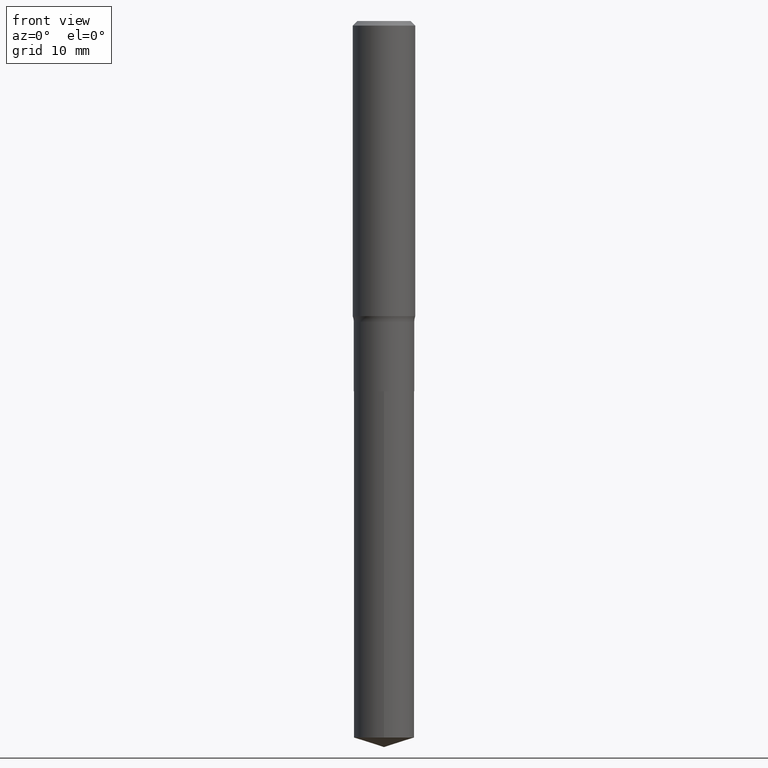
[diagram: clean part render]
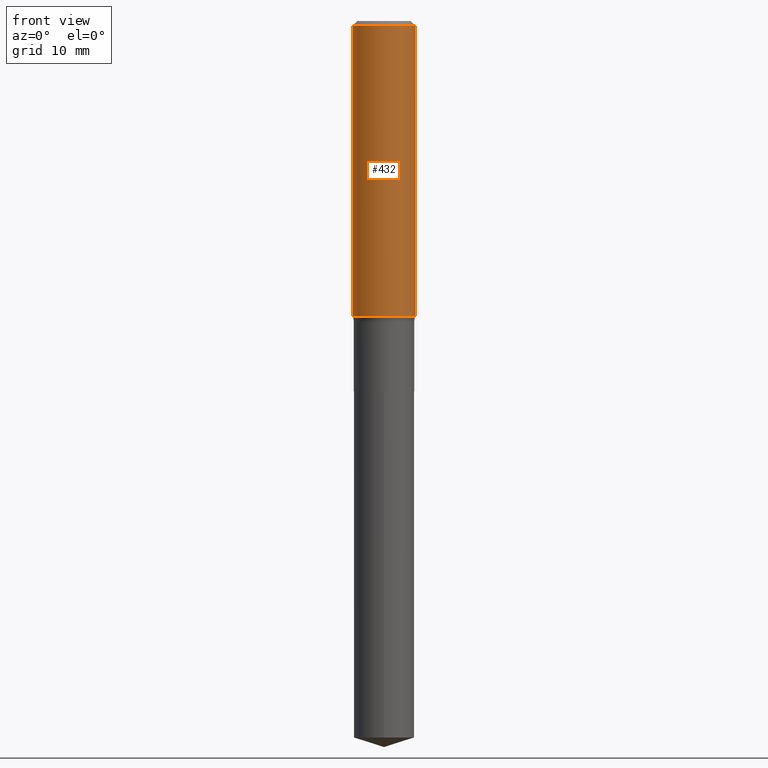
[diagram: same view with one face highlighted and labeled with its STEP entity id]
A machine part, front view. The second image highlights one B-rep face of the part: STEP entity #432.
In plain terms, the highlighted cylindrical surface (edge-blend (fillet) strip) has radius 3.9688 mm, axis along (-0, 0, 1).
Its self-contained STEP definition (entity closure, byte-faithful):
#8 = ORIENTED_EDGE ( 'NONE', *, *, #55, .F. ) ;
#15 = CARTESIAN_POINT ( 'NONE',  ( -0.1562500000000000000, -1.502984913880617145E-15, -0.02343750000000013878 ) ) ;
#55 = EDGE_CURVE ( 'NONE', #339, #415, #392, .T. ) ;
#57 = DIRECTION ( 'NONE',  ( 1.000000000000000000, -6.982962677686266711E-15, 4.876176775795935232E-29 ) ) ;
#64 = DIRECTION ( 'NONE',  ( -2.445468806185136597E-29, 3.491481338843145583E-15, 1.000000000000000000 ) ) ;
#86 = CARTESIAN_POINT ( 'NONE',  ( -0.1562500000000000833, 1.110223024625157132E-15, -7.685836078523293962E-30 ) ) ;
#89 = EDGE_CURVE ( 'NONE', #153, #161, #256, .T. ) ;
#95 = CARTESIAN_POINT ( 'NONE',  ( 0.1562500000000000000, -1.172919512267615999E-15, -0.02343750000000013878 ) ) ;
#117 = DIRECTION ( 'NONE',  ( 1.000000000000000000, -6.982962677686266711E-15, 0.000000000000000000 ) ) ;
#132 = EDGE_CURVE ( 'NONE', #153, #339, #310, .T. ) ;
#144 = EDGE_LOOP ( 'NONE', ( #308, #265, #158, #8 ) ) ;
#147 = AXIS2_PLACEMENT_3D ( 'NONE', #191, #329, #117 ) ;
#153 = VERTEX_POINT ( 'NONE', #272 ) ;
#158 = ORIENTED_EDGE ( 'NONE', *, *, #330, .T. ) ;
#161 = VERTEX_POINT ( 'NONE', #266 ) ;
#163 = AXIS2_PLACEMENT_3D ( 'NONE', #253, #64, #57 ) ;
#164 = DIRECTION ( 'NONE',  ( -2.445468806185136597E-29, 3.491481338843145583E-15, 1.000000000000000000 ) ) ;
#191 = CARTESIAN_POINT ( 'NONE',  ( 5.731567514496448055E-31, -8.183159387913671455E-17, -0.02343750000000013878 ) ) ;
#208 = CARTESIAN_POINT ( 'NONE',  ( 3.603318810622414011E-29, -5.144584283132411729E-15, -1.473467500999733115 ) ) ;
#209 = DIRECTION ( 'NONE',  ( -2.445468806185136877E-29, 3.491481338843145188E-15, 1.000000000000000000 ) ) ;
#239 = AXIS2_PLACEMENT_3D ( 'NONE', #208, #164, #435 ) ;
#253 = CARTESIAN_POINT ( 'NONE',  ( 0.000000000000000000, 0.000000000000000000, 0.000000000000000000 ) ) ;
#256 = CIRCLE ( 'NONE', #239, 0.1562500000000001388 ) ;
#265 = ORIENTED_EDGE ( 'NONE', *, *, #89, .T. ) ;
#266 = CARTESIAN_POINT ( 'NONE',  ( 0.1562500000000001388, -6.235672201520892481E-15, -1.473467500999733115 ) ) ;
#272 = CARTESIAN_POINT ( 'NONE',  ( -0.1562500000000001388, -4.034361258507254400E-15, -1.473467500999733115 ) ) ;
#282 = CARTESIAN_POINT ( 'NONE',  ( 0.1562500000000000833, -1.091087918388479765E-15, 7.619026212181153180E-30 ) ) ;
#308 = ORIENTED_EDGE ( 'NONE', *, *, #132, .F. ) ;
#310 = LINE ( 'NONE', #86, #377 ) ;
#318 = DIRECTION ( 'NONE',  ( -2.445468806185136877E-29, 3.491481338843145188E-15, 1.000000000000000000 ) ) ;
#329 = DIRECTION ( 'NONE',  ( -2.445468806185136597E-29, 3.491481338843145583E-15, 1.000000000000000000 ) ) ;
#330 = EDGE_CURVE ( 'NONE', #161, #415, #469, .T. ) ;
#339 = VERTEX_POINT ( 'NONE', #15 ) ;
#354 = CYLINDRICAL_SURFACE ( 'NONE', #163, 0.1562500000000000833 ) ;
#377 = VECTOR ( 'NONE', #318, 39.37007874015748143 ) ;
#392 = CIRCLE ( 'NONE', #147, 0.1562500000000000000 ) ;
#415 = VERTEX_POINT ( 'NONE', #95 ) ;
#432 = ADVANCED_FACE ( 'NONE', ( #440 ), #354, .T. ) ;
#435 = DIRECTION ( 'NONE',  ( 1.000000000000000000, -6.982962677686269077E-15, 0.000000000000000000 ) ) ;
#440 = FACE_OUTER_BOUND ( 'NONE', #144, .T. ) ;
#469 = LINE ( 'NONE', #282, #483 ) ;
#483 = VECTOR ( 'NONE', #209, 39.37007874015748143 ) ;